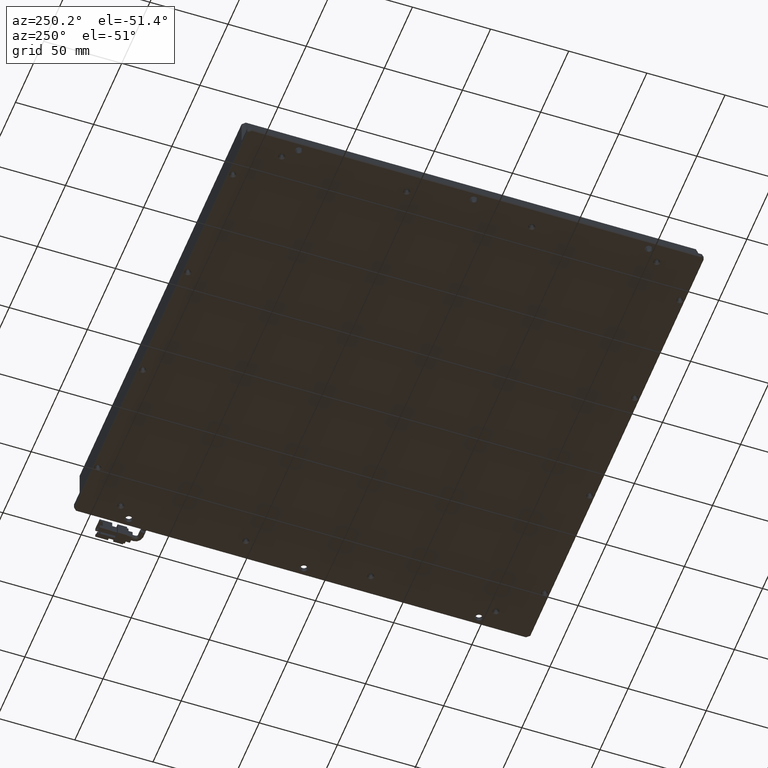
[diagram: clean part render]
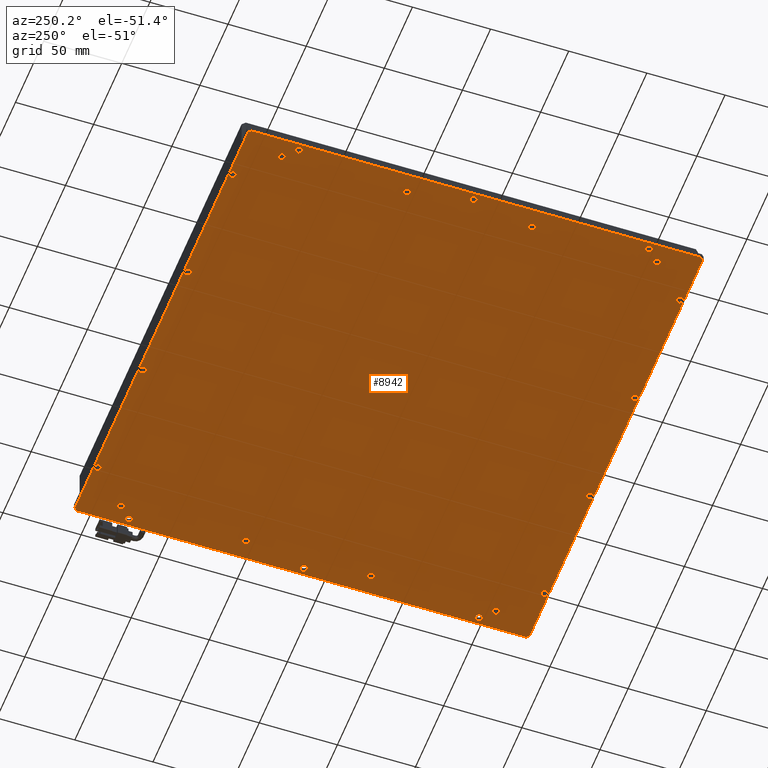
[diagram: same view with one face highlighted and labeled with its STEP entity id]
A machine part, auxiliary view. The second image highlights one B-rep face of the part: STEP entity #8942.
In plain terms, the highlighted planar face has unit normal (0, 0, -1).
Its self-contained STEP definition (entity closure, byte-faithful):
#92 = CARTESIAN_POINT ( 'NONE',  ( 175.9193228736580700, 53.26980456922658600, -10.00000000000637900 ) ) ;
#152 = DIRECTION ( 'NONE',  ( -0.0000000000000000000, -0.0000000000000000000, 1.000000000000000000 ) ) ;
#187 = CIRCLE ( 'NONE', #7081, 2.249999999999974200 ) ;
#237 = DIRECTION ( 'NONE',  ( -1.000000000000000000, 0.0000000000000000000, 0.0000000000000000000 ) ) ;
#323 = CARTESIAN_POINT ( 'NONE',  ( -115.8306771263419100, 13.26980456922663400, -10.00000000002819400 ) ) ;
#325 = DIRECTION ( 'NONE',  ( -1.000000000000000000, 0.0000000000000000000, -0.0000000000000000000 ) ) ;
#411 = FACE_BOUND ( 'NONE', #17421, .T. ) ;
#450 = AXIS2_PLACEMENT_3D ( 'NONE', #23255, #16265, #8909 ) ;
#518 = AXIS2_PLACEMENT_3D ( 'NONE', #3213, #10387, #23298 ) ;
#539 = ORIENTED_EDGE ( 'NONE', *, *, #12701, .T. ) ;
#540 = VERTEX_POINT ( 'NONE', #6546 ) ;
#587 = CARTESIAN_POINT ( 'NONE',  ( -115.8306771263419100, 125.2698045692265900, -10.00000000002819400 ) ) ;
#616 = EDGE_CURVE ( 'NONE', #17649, #12353, #4560, .T. ) ;
#648 = ORIENTED_EDGE ( 'NONE', *, *, #17652, .F. ) ;
#662 = DIRECTION ( 'NONE',  ( -1.000000000000000000, 0.0000000000000000000, 0.0000000000000000000 ) ) ;
#670 = DIRECTION ( 'NONE',  ( 1.000000000000000000, 0.0000000000000000000, 0.0000000000000000000 ) ) ;
#677 = CIRCLE ( 'NONE', #2273, 2.249999999999974200 ) ;
#779 = EDGE_LOOP ( 'NONE', ( #15564, #10422 ) ) ;
#781 = VERTEX_POINT ( 'NONE', #821 ) ;
#821 = CARTESIAN_POINT ( 'NONE',  ( -84.88067712638391500, 156.2698045692266400, -10.00000000002819400 ) ) ;
#877 = AXIS2_PLACEMENT_3D ( 'NONE', #3053, #8214, #4871 ) ;
#888 = EDGE_CURVE ( 'NONE', #23918, #4594, #16999, .T. ) ;
#949 = DIRECTION ( 'NONE',  ( -1.000000000000000000, 0.0000000000000000000, 0.0000000000000000000 ) ) ;
#956 = CIRCLE ( 'NONE', #2089, 2.199999999902502200 ) ;
#998 = DIRECTION ( 'NONE',  ( -0.0000000000000000000, -0.0000000000000000000, 1.000000000000000000 ) ) ;
#1011 = CARTESIAN_POINT ( 'NONE',  ( -112.2806771263244500, 133.2698045692266100, -10.00000000008503800 ) ) ;
#1038 = EDGE_LOOP ( 'NONE', ( #648, #22763, #3623, #20508, #16617, #23545, #8580, #10185 ) ) ;
#1136 = EDGE_CURVE ( 'NONE', #9655, #20993, #11478, .T. ) ;
#1254 = VERTEX_POINT ( 'NONE', #18297 ) ;
#1259 = DIRECTION ( 'NONE',  ( 1.000000000000000000, 0.0000000000000000000, 0.0000000000000000000 ) ) ;
#1316 = CARTESIAN_POINT ( 'NONE',  ( 175.9193228736580700, -26.73019543077340300, -10.00000000000637900 ) ) ;
#1357 = DIRECTION ( 'NONE',  ( -0.0000000000000000000, -0.0000000000000000000, 1.000000000000000000 ) ) ;
#1374 = AXIS2_PLACEMENT_3D ( 'NONE', #13327, #152, #2250 ) ;
#1587 = EDGE_CURVE ( 'NONE', #4174, #3041, #6492, .T. ) ;
#1660 = ORIENTED_EDGE ( 'NONE', *, *, #17012, .T. ) ;
#1670 = DIRECTION ( 'NONE',  ( -0.0000000000000000000, -0.0000000000000000000, 1.000000000000000000 ) ) ;
#1673 = DIRECTION ( 'NONE',  ( -1.000000000000000000, 0.0000000000000000000, 0.0000000000000000000 ) ) ;
#1689 = AXIS2_PLACEMENT_3D ( 'NONE', #13476, #4085, #4006 ) ;
#1691 = CARTESIAN_POINT ( 'NONE',  ( 175.9193228736580700, -106.7301954307733900, -10.00000000000637900 ) ) ;
#1735 = CARTESIAN_POINT ( 'NONE',  ( 188.4193228736581000, 157.0626977880402800, -10.00000000002820000 ) ) ;
#1754 = EDGE_CURVE ( 'NONE', #540, #12982, #3296, .T. ) ;
#1930 = DIRECTION ( 'NONE',  ( -1.000000000000000000, 0.0000000000000000000, 0.0000000000000000000 ) ) ;
#1967 = CARTESIAN_POINT ( 'NONE',  ( -112.2806771263244500, -26.73019543077340300, -10.00000000008503800 ) ) ;
#2053 = EDGE_CURVE ( 'NONE', #19864, #13130, #3570, .T. ) ;
#2062 = EDGE_CURVE ( 'NONE', #3555, #11064, #10200, .T. ) ;
#2072 = ORIENTED_EDGE ( 'NONE', *, *, #7774, .T. ) ;
#2082 = CARTESIAN_POINT ( 'NONE',  ( -120.3306771263419000, 13.26980456922663400, -10.00000000002819400 ) ) ;
#2089 = AXIS2_PLACEMENT_3D ( 'NONE', #6738, #4938, #8681 ) ;
#2108 = AXIS2_PLACEMENT_3D ( 'NONE', #1691, #12762, #20178 ) ;
#2133 = FACE_BOUND ( 'NONE', #7761, .T. ) ;
#2151 = EDGE_LOOP ( 'NONE', ( #2072, #19288 ) ) ;
#2190 = VERTEX_POINT ( 'NONE', #3263 ) ;
#2240 = EDGE_LOOP ( 'NONE', ( #19746, #2811 ) ) ;
#2250 = DIRECTION ( 'NONE',  ( -1.000000000000000000, 0.0000000000000000000, 0.0000000000000000000 ) ) ;
#2273 = AXIS2_PLACEMENT_3D ( 'NONE', #21030, #10032, #11774 ) ;
#2418 = CARTESIAN_POINT ( 'NONE',  ( 72.91932287365810300, 156.2698045692266400, -10.00000000005456300 ) ) ;
#2612 = EDGE_CURVE ( 'NONE', #12008, #2729, #9862, .T. ) ;
#2680 = EDGE_CURVE ( 'NONE', #19670, #2190, #16228, .T. ) ;
#2697 = FACE_BOUND ( 'NONE', #12087, .T. ) ;
#2729 = VERTEX_POINT ( 'NONE', #19055 ) ;
#2761 = CARTESIAN_POINT ( 'NONE',  ( 178.1193228735605800, 53.26980456922658600, -10.00000000000637900 ) ) ;
#2774 = EDGE_LOOP ( 'NONE', ( #13380, #4283 ) ) ;
#2782 = DIRECTION ( 'NONE',  ( -1.000000000000000000, 0.0000000000000000000, 0.0000000000000000000 ) ) ;
#2811 = ORIENTED_EDGE ( 'NONE', *, *, #10357, .T. ) ;
#2836 = DIRECTION ( 'NONE',  ( 1.000000000000000000, 0.0000000000000000000, 0.0000000000000000000 ) ) ;
#2949 = CARTESIAN_POINT ( 'NONE',  ( 152.9193228736580500, 156.2698045692266400, -10.00000000003868500 ) ) ;
#2950 = AXIS2_PLACEMENT_3D ( 'NONE', #19813, #12493, #21439 ) ;
#2989 = DIRECTION ( 'NONE',  ( -0.0000000000000000000, -0.0000000000000000000, 1.000000000000000000 ) ) ;
#3005 = AXIS2_PLACEMENT_3D ( 'NONE', #13757, #6395, #8488 ) ;
#3006 = DIRECTION ( 'NONE',  ( -1.000000000000000000, 0.0000000000000000000, 0.0000000000000000000 ) ) ;
#3009 = CARTESIAN_POINT ( 'NONE',  ( -9.280677126315806500, -129.7301954307733600, -9.999999999971350900 ) ) ;
#3041 = VERTEX_POINT ( 'NONE', #18002 ) ;
#3053 = CARTESIAN_POINT ( 'NONE',  ( 183.9193228736580700, 13.26980456922655100, -10.00000000002819400 ) ) ;
#3065 = ORIENTED_EDGE ( 'NONE', *, *, #2053, .T. ) ;
#3213 = CARTESIAN_POINT ( 'NONE',  ( 183.9193228736580700, 125.2698045692265400, -10.00000000002819400 ) ) ;
#3263 = CARTESIAN_POINT ( 'NONE',  ( -120.3306771263419000, -98.73019543077346300, -10.00000000002819400 ) ) ;
#3265 = FACE_BOUND ( 'NONE', #18158, .T. ) ;
#3296 = CIRCLE ( 'NONE', #18673, 2.199999999982535500 ) ;
#3322 = AXIS2_PLACEMENT_3D ( 'NONE', #23217, #2989, #21542 ) ;
#3333 = CARTESIAN_POINT ( 'NONE',  ( 188.4193228736581300, 157.0626977880401100, -10.00000000002823700 ) ) ;
#3362 = DIRECTION ( 'NONE',  ( 1.000000000000000000, 0.0000000000000000000, 0.0000000000000000000 ) ) ;
#3538 = VERTEX_POINT ( 'NONE', #11591 ) ;
#3555 = VERTEX_POINT ( 'NONE', #20842 ) ;
#3557 = DIRECTION ( 'NONE',  ( -1.000000000000000000, 0.0000000000000000000, 0.0000000000000000000 ) ) ;
#3570 = CIRCLE ( 'NONE', #9519, 2.199999999959345600 ) ;
#3623 = ORIENTED_EDGE ( 'NONE', *, *, #19399, .T. ) ;
#3633 = DIRECTION ( 'NONE',  ( -1.000000000000000000, 0.0000000000000000000, 0.0000000000000000000 ) ) ;
#3638 = ORIENTED_EDGE ( 'NONE', *, *, #10972, .T. ) ;
#3757 = CARTESIAN_POINT ( 'NONE',  ( -87.08067712634191100, 156.2698045692266400, -10.00000000002819400 ) ) ;
#3779 = CARTESIAN_POINT ( 'NONE',  ( 186.7122160924718100, 158.7698045692266400, -10.00000000002818900 ) ) ;
#3786 = DIRECTION ( 'NONE',  ( -1.000000000000000000, 0.0000000000000000000, 0.0000000000000000000 ) ) ;
#3837 = AXIS2_PLACEMENT_3D ( 'NONE', #15107, #6115, #670 ) ;
#3887 = CARTESIAN_POINT ( 'NONE',  ( -4.880677126368027500, -129.7301954307733600, -9.999999999971350900 ) ) ;
#3983 = EDGE_CURVE ( 'NONE', #1254, #22780, #10309, .T. ) ;
#4001 = DIRECTION ( 'NONE',  ( -0.0000000000000000000, -0.0000000000000000000, 1.000000000000000000 ) ) ;
#4006 = DIRECTION ( 'NONE',  ( -1.000000000000000000, 0.0000000000000000000, 0.0000000000000000000 ) ) ;
#4063 = CIRCLE ( 'NONE', #9638, 2.199999999957985800 ) ;
#4075 = AXIS2_PLACEMENT_3D ( 'NONE', #12422, #1357, #1673 ) ;
#4085 = DIRECTION ( 'NONE',  ( -0.0000000000000000000, -0.0000000000000000000, 1.000000000000000000 ) ) ;
#4118 = EDGE_CURVE ( 'NONE', #14651, #4829, #11805, .T. ) ;
#4168 = DIRECTION ( 'NONE',  ( -1.000000000000000000, 0.0000000000000000000, 0.0000000000000000000 ) ) ;
#4174 = VERTEX_POINT ( 'NONE', #7707 ) ;
#4212 = ORIENTED_EDGE ( 'NONE', *, *, #16121, .T. ) ;
#4264 = VERTEX_POINT ( 'NONE', #16604 ) ;
#4283 = ORIENTED_EDGE ( 'NONE', *, *, #1754, .T. ) ;
#4387 = AXIS2_PLACEMENT_3D ( 'NONE', #5021, #18006, #19837 ) ;
#4428 = CARTESIAN_POINT ( 'NONE',  ( 152.9193228736580500, 156.2698045692266400, -10.00000000003868500 ) ) ;
#4440 = DIRECTION ( 'NONE',  ( 0.0000000000000000000, 1.000000000000000000, 0.0000000000000000000 ) ) ;
#4463 = DIRECTION ( 'NONE',  ( -0.0000000000000000000, -0.0000000000000000000, 1.000000000000000000 ) ) ;
#4480 = CARTESIAN_POINT ( 'NONE',  ( -110.0806771263419100, -26.73019543077340300, -10.00000000008503800 ) ) ;
#4560 = CIRCLE ( 'NONE', #22505, 2.199999999902502200 ) ;
#4594 = VERTEX_POINT ( 'NONE', #3009 ) ;
#4664 = FACE_BOUND ( 'NONE', #6750, .T. ) ;
#4740 = DIRECTION ( 'NONE',  ( -0.0000000000000000000, -0.0000000000000000000, 1.000000000000000000 ) ) ;
#4762 = CARTESIAN_POINT ( 'NONE',  ( 175.9193228736580700, -26.73019543077340300, -10.00000000000637900 ) ) ;
#4818 = AXIS2_PLACEMENT_3D ( 'NONE', #9565, #4001, #18798 ) ;
#4829 = VERTEX_POINT ( 'NONE', #20174 ) ;
#4850 = ORIENTED_EDGE ( 'NONE', *, *, #19972, .T. ) ;
#4871 = DIRECTION ( 'NONE',  ( 1.000000000000000000, 0.0000000000000000000, 0.0000000000000000000 ) ) ;
#4918 = CARTESIAN_POINT ( 'NONE',  ( 183.9193228736580700, -98.73019543077344900, -10.00000000002819400 ) ) ;
#4938 = DIRECTION ( 'NONE',  ( -0.0000000000000000000, -0.0000000000000000000, 1.000000000000000000 ) ) ;
#5021 = CARTESIAN_POINT ( 'NONE',  ( -123.0806771263419100, 159.2698045692266400, -10.00000000002819400 ) ) ;
#5085 = CARTESIAN_POINT ( 'NONE',  ( -110.0806771263419100, -26.73019543077340300, -10.00000000008503800 ) ) ;
#5170 = EDGE_CURVE ( 'NONE', #21019, #9984, #956, .T. ) ;
#5257 = CIRCLE ( 'NONE', #23558, 2.200000000016189000 ) ;
#5258 = FACE_BOUND ( 'NONE', #22750, .T. ) ;
#5271 = EDGE_CURVE ( 'NONE', #6400, #13321, #10439, .T. ) ;
#5334 = LINE ( 'NONE', #6951, #16065 ) ;
#5346 = CARTESIAN_POINT ( 'NONE',  ( 152.9193228736580500, -129.7301954307733600, -10.00000000003868500 ) ) ;
#5361 = VECTOR ( 'NONE', #11199, 1000.000000000000000 ) ;
#5415 = EDGE_CURVE ( 'NONE', #13321, #6400, #6661, .T. ) ;
#5566 = CIRCLE ( 'NONE', #14068, 2.249999999999974200 ) ;
#5658 = EDGE_CURVE ( 'NONE', #20896, #10905, #677, .T. ) ;
#5695 = ORIENTED_EDGE ( 'NONE', *, *, #7265, .T. ) ;
#5762 = CIRCLE ( 'NONE', #3005, 2.199999999973889500 ) ;
#5787 = CIRCLE ( 'NONE', #12129, 2.199999999957985800 ) ;
#5804 = ORIENTED_EDGE ( 'NONE', *, *, #616, .T. ) ;
#5889 = ORIENTED_EDGE ( 'NONE', *, *, #3983, .T. ) ;
#5925 = AXIS2_PLACEMENT_3D ( 'NONE', #9602, #22432, #11417 ) ;
#5930 = CARTESIAN_POINT ( 'NONE',  ( -123.0806771263419100, 158.7698045692266400, -10.00000000002819400 ) ) ;
#5996 = ORIENTED_EDGE ( 'NONE', *, *, #15347, .T. ) ;
#6007 = CIRCLE ( 'NONE', #15870, 2.199999999973889500 ) ;
#6028 = EDGE_LOOP ( 'NONE', ( #22400, #9446 ) ) ;
#6110 = DIRECTION ( 'NONE',  ( -0.0000000000000000000, -0.0000000000000000000, 1.000000000000000000 ) ) ;
#6115 = DIRECTION ( 'NONE',  ( -0.0000000000000000000, -0.0000000000000000000, 1.000000000000000000 ) ) ;
#6168 = EDGE_CURVE ( 'NONE', #11722, #14380, #14191, .T. ) ;
#6315 = DIRECTION ( 'NONE',  ( -0.0000000000000000000, -0.0000000000000000000, 1.000000000000000000 ) ) ;
#6395 = DIRECTION ( 'NONE',  ( -0.0000000000000000000, -0.0000000000000000000, 1.000000000000000000 ) ) ;
#6400 = VERTEX_POINT ( 'NONE', #16340 ) ;
#6405 = ORIENTED_EDGE ( 'NONE', *, *, #12730, .T. ) ;
#6470 = EDGE_CURVE ( 'NONE', #11890, #18915, #5334, .T. ) ;
#6492 = CIRCLE ( 'NONE', #9210, 2.199999999902502200 ) ;
#6542 = VERTEX_POINT ( 'NONE', #20374 ) ;
#6546 = CARTESIAN_POINT ( 'NONE',  ( -107.8806771263593700, 53.26980456922658600, -10.00000000008503800 ) ) ;
#6634 = CIRCLE ( 'NONE', #518, 2.249999999999974200 ) ;
#6661 = CIRCLE ( 'NONE', #4075, 2.199999999957985800 ) ;
#6674 = DIRECTION ( 'NONE',  ( -0.0000000000000000000, -0.0000000000000000000, 1.000000000000000000 ) ) ;
#6738 = CARTESIAN_POINT ( 'NONE',  ( 175.9193228736580700, 133.2698045692266100, -10.00000000000637900 ) ) ;
#6750 = EDGE_LOOP ( 'NONE', ( #13062, #5889 ) ) ;
#6779 = EDGE_LOOP ( 'NONE', ( #23517, #5695 ) ) ;
#6832 = CARTESIAN_POINT ( 'NONE',  ( 75.11932287367429200, 156.2698045692266400, -10.00000000005456300 ) ) ;
#6877 = VERTEX_POINT ( 'NONE', #6832 ) ;
#6950 = CARTESIAN_POINT ( 'NONE',  ( 175.9193228736580700, -106.7301954307733900, -10.00000000000637900 ) ) ;
#6951 = CARTESIAN_POINT ( 'NONE',  ( -123.0806771263419100, -132.2301954307733600, -10.00000000002819400 ) ) ;
#6981 = EDGE_CURVE ( 'NONE', #19460, #22696, #9635, .T. ) ;
#7005 = ORIENTED_EDGE ( 'NONE', *, *, #18929, .T. ) ;
#7081 = AXIS2_PLACEMENT_3D ( 'NONE', #11311, #18581, #7502 ) ;
#7138 = AXIS2_PLACEMENT_3D ( 'NONE', #8342, #21258, #15860 ) ;
#7148 = EDGE_LOOP ( 'NONE', ( #23844, #15415 ) ) ;
#7194 = DIRECTION ( 'NONE',  ( -0.7071067811865360300, 0.7071067811865589000, 1.724510377719932900E-014 ) ) ;
#7215 = ORIENTED_EDGE ( 'NONE', *, *, #7979, .T. ) ;
#7265 = EDGE_CURVE ( 'NONE', #4829, #14651, #8163, .T. ) ;
#7417 = DIRECTION ( 'NONE',  ( -0.0000000000000000000, -0.0000000000000000000, 1.000000000000000000 ) ) ;
#7502 = DIRECTION ( 'NONE',  ( 1.000000000000000000, 0.0000000000000000000, 0.0000000000000000000 ) ) ;
#7550 = DIRECTION ( 'NONE',  ( -0.0000000000000000000, -0.0000000000000000000, 1.000000000000000000 ) ) ;
#7566 = CIRCLE ( 'NONE', #10504, 2.199999999959345600 ) ;
#7584 = DIRECTION ( 'NONE',  ( -0.0000000000000000000, -0.0000000000000000000, 1.000000000000000000 ) ) ;
#7631 = EDGE_CURVE ( 'NONE', #19929, #9885, #16225, .T. ) ;
#7654 = CIRCLE ( 'NONE', #17416, 2.249999999999988000 ) ;
#7663 = VERTEX_POINT ( 'NONE', #1735 ) ;
#7688 = ORIENTED_EDGE ( 'NONE', *, *, #12640, .T. ) ;
#7707 = CARTESIAN_POINT ( 'NONE',  ( 173.7193228737555700, -26.73019543077340300, -10.00000000000637900 ) ) ;
#7716 = DIRECTION ( 'NONE',  ( -0.0000000000000000000, -0.0000000000000000000, 1.000000000000000000 ) ) ;
#7761 = EDGE_LOOP ( 'NONE', ( #12371, #15483 ) ) ;
#7774 = EDGE_CURVE ( 'NONE', #10335, #781, #5787, .T. ) ;
#7810 = EDGE_CURVE ( 'NONE', #781, #10335, #4063, .T. ) ;
#7874 = AXIS2_PLACEMENT_3D ( 'NONE', #21760, #1670, #3362 ) ;
#7899 = AXIS2_PLACEMENT_3D ( 'NONE', #5346, #16193, #14601 ) ;
#7979 = EDGE_CURVE ( 'NONE', #4594, #23918, #5762, .T. ) ;
#8030 = EDGE_LOOP ( 'NONE', ( #4212, #3065 ) ) ;
#8035 = LINE ( 'NONE', #5930, #17880 ) ;
#8071 = ORIENTED_EDGE ( 'NONE', *, *, #8675, .T. ) ;
#8145 = EDGE_LOOP ( 'NONE', ( #539, #22048 ) ) ;
#8163 = CIRCLE ( 'NONE', #20255, 2.199999999959345600 ) ;
#8168 = CARTESIAN_POINT ( 'NONE',  ( 186.1693228736580700, 13.26980456922655100, -10.00000000002819400 ) ) ;
#8172 = CARTESIAN_POINT ( 'NONE',  ( -118.0806771263419100, -98.73019543077346300, -10.00000000002819400 ) ) ;
#8214 = DIRECTION ( 'NONE',  ( -0.0000000000000000000, -0.0000000000000000000, 1.000000000000000000 ) ) ;
#8237 = CIRCLE ( 'NONE', #10782, 2.199999999902502200 ) ;
#8342 = CARTESIAN_POINT ( 'NONE',  ( -118.0806771263419100, 13.26980456922663400, -10.00000000002819400 ) ) ;
#8417 = LINE ( 'NONE', #10863, #18270 ) ;
#8488 = DIRECTION ( 'NONE',  ( -1.000000000000000000, 0.0000000000000000000, 0.0000000000000000000 ) ) ;
#8549 = CARTESIAN_POINT ( 'NONE',  ( 150.7193228736987000, -129.7301954307733600, -10.00000000003868500 ) ) ;
#8576 = CARTESIAN_POINT ( 'NONE',  ( 181.6693228736581000, 125.2698045692265400, -10.00000000002819400 ) ) ;
#8580 = ORIENTED_EDGE ( 'NONE', *, *, #11894, .T. ) ;
#8675 = EDGE_CURVE ( 'NONE', #22696, #19460, #6007, .T. ) ;
#8681 = DIRECTION ( 'NONE',  ( -1.000000000000000000, 0.0000000000000000000, 0.0000000000000000000 ) ) ;
#8690 = PLANE ( 'NONE',  #4387 ) ;
#8747 = FACE_BOUND ( 'NONE', #22723, .T. ) ;
#8797 = CIRCLE ( 'NONE', #9604, 2.199999999902502200 ) ;
#8827 = DIRECTION ( 'NONE',  ( -0.0000000000000000000, -0.0000000000000000000, 1.000000000000000000 ) ) ;
#8898 = DIRECTION ( 'NONE',  ( -1.000000000000000000, 0.0000000000000000000, 0.0000000000000000000 ) ) ;
#8909 = DIRECTION ( 'NONE',  ( -1.000000000000000000, 0.0000000000000000000, 0.0000000000000000000 ) ) ;
#8920 = DIRECTION ( 'NONE',  ( -0.0000000000000000000, -1.000000000000000000, -0.0000000000000000000 ) ) ;
#8942 = ADVANCED_FACE ( 'NONE', ( #20603, #14552, #23166, #15685, #21750, #12533, #2133, #11948, #19435, #4664, #15988, #411, #18024, #5258, #3265, #2697, #14850, #16860, #10757, #11381, #8747, #11070, #21172 ), #8690, .T. ) ;
#8950 = DIRECTION ( 'NONE',  ( -1.000000000000000000, 0.0000000000000000000, 0.0000000000000000000 ) ) ;
#8955 = AXIS2_PLACEMENT_3D ( 'NONE', #21253, #6315, #13763 ) ;
#9059 = CARTESIAN_POINT ( 'NONE',  ( -107.8806771263593700, -26.73019543077340300, -10.00000000008503800 ) ) ;
#9112 = VERTEX_POINT ( 'NONE', #323 ) ;
#9115 = CARTESIAN_POINT ( 'NONE',  ( -7.080677126341916100, 156.2698045692266400, -9.999999999971350900 ) ) ;
#9118 = LINE ( 'NONE', #3333, #16059 ) ;
#9136 = EDGE_LOOP ( 'NONE', ( #3638, #17886 ) ) ;
#9210 = AXIS2_PLACEMENT_3D ( 'NONE', #1316, #4740, #3006 ) ;
#9280 = AXIS2_PLACEMENT_3D ( 'NONE', #8172, #10003, #2836 ) ;
#9283 = CARTESIAN_POINT ( 'NONE',  ( 188.4193228736581000, -130.5230886495869000, -10.00000000002819600 ) ) ;
#9369 = CARTESIAN_POINT ( 'NONE',  ( 173.7193228737555700, 133.2698045692266100, -10.00000000000637900 ) ) ;
#9446 = ORIENTED_EDGE ( 'NONE', *, *, #10916, .T. ) ;
#9519 = AXIS2_PLACEMENT_3D ( 'NONE', #2949, #19565, #949 ) ;
#9565 = CARTESIAN_POINT ( 'NONE',  ( -7.080677126341916100, -129.7301954307733600, -9.999999999971350900 ) ) ;
#9602 = CARTESIAN_POINT ( 'NONE',  ( -110.0806771263419100, 53.26980456922658600, -10.00000000008503800 ) ) ;
#9604 = AXIS2_PLACEMENT_3D ( 'NONE', #4762, #17499, #2782 ) ;
#9635 = CIRCLE ( 'NONE', #10004, 2.199999999973889500 ) ;
#9638 = AXIS2_PLACEMENT_3D ( 'NONE', #3757, #7550, #16689 ) ;
#9655 = VERTEX_POINT ( 'NONE', #1967 ) ;
#9686 = CARTESIAN_POINT ( 'NONE',  ( -4.880677126368027500, 156.2698045692266400, -9.999999999971350900 ) ) ;
#9778 = DIRECTION ( 'NONE',  ( 0.7071067811865461300, -0.7071067811865489100, 5.748367925732748000E-015 ) ) ;
#9862 = CIRCLE ( 'NONE', #1374, 2.199999999982535500 ) ;
#9885 = VERTEX_POINT ( 'NONE', #8168 ) ;
#9984 = VERTEX_POINT ( 'NONE', #10480 ) ;
#10003 = DIRECTION ( 'NONE',  ( -0.0000000000000000000, -0.0000000000000000000, 1.000000000000000000 ) ) ;
#10004 = AXIS2_PLACEMENT_3D ( 'NONE', #23542, #23626, #8950 ) ;
#10032 = DIRECTION ( 'NONE',  ( -0.0000000000000000000, -0.0000000000000000000, 1.000000000000000000 ) ) ;
#10055 = CARTESIAN_POINT ( 'NONE',  ( -122.5806771263419300, -130.5230886495868400, -10.00000000002819400 ) ) ;
#10075 = EDGE_CURVE ( 'NONE', #2729, #12008, #19597, .T. ) ;
#10110 = EDGE_CURVE ( 'NONE', #16958, #20120, #13845, .T. ) ;
#10185 = ORIENTED_EDGE ( 'NONE', *, *, #10687, .F. ) ;
#10200 = CIRCLE ( 'NONE', #450, 2.200000000016189000 ) ;
#10263 = LINE ( 'NONE', #22239, #5361 ) ;
#10309 = CIRCLE ( 'NONE', #2950, 2.199999999982535500 ) ;
#10335 = VERTEX_POINT ( 'NONE', #21301 ) ;
#10357 = EDGE_CURVE ( 'NONE', #20993, #9655, #20744, .T. ) ;
#10387 = DIRECTION ( 'NONE',  ( -0.0000000000000000000, -0.0000000000000000000, 1.000000000000000000 ) ) ;
#10422 = ORIENTED_EDGE ( 'NONE', *, *, #16119, .T. ) ;
#10439 = CIRCLE ( 'NONE', #15680, 2.199999999957985800 ) ;
#10453 = CARTESIAN_POINT ( 'NONE',  ( -87.08067712634191100, -129.7301954307733600, -10.00000000002819400 ) ) ;
#10480 = CARTESIAN_POINT ( 'NONE',  ( 178.1193228735605800, 133.2698045692266100, -10.00000000000637900 ) ) ;
#10504 = AXIS2_PLACEMENT_3D ( 'NONE', #4428, #998, #17627 ) ;
#10664 = ORIENTED_EDGE ( 'NONE', *, *, #6981, .T. ) ;
#10687 = EDGE_CURVE ( 'NONE', #6542, #22182, #10263, .T. ) ;
#10757 = FACE_BOUND ( 'NONE', #2151, .T. ) ;
#10782 = AXIS2_PLACEMENT_3D ( 'NONE', #20737, #7584, #3786 ) ;
#10863 = CARTESIAN_POINT ( 'NONE',  ( 186.7122160924716900, -132.2301954307733400, -10.00000000002817100 ) ) ;
#10905 = VERTEX_POINT ( 'NONE', #8576 ) ;
#10916 = EDGE_CURVE ( 'NONE', #3041, #4174, #8797, .T. ) ;
#10972 = EDGE_CURVE ( 'NONE', #9112, #13541, #22087, .T. ) ;
#11048 = CIRCLE ( 'NONE', #8955, 2.199999999982535500 ) ;
#11064 = VERTEX_POINT ( 'NONE', #17982 ) ;
#11070 = FACE_BOUND ( 'NONE', #8030, .T. ) ;
#11113 = CIRCLE ( 'NONE', #5925, 2.199999999982535500 ) ;
#11199 = DIRECTION ( 'NONE',  ( -0.7071067811865439100, -0.7071067811865512400, -4.625639815238161800E-015 ) ) ;
#11223 = DIRECTION ( 'NONE',  ( -0.0000000000000000000, -0.0000000000000000000, 1.000000000000000000 ) ) ;
#11311 = CARTESIAN_POINT ( 'NONE',  ( 183.9193228736580700, -98.73019543077344900, -10.00000000002819400 ) ) ;
#11381 = FACE_BOUND ( 'NONE', #16105, .T. ) ;
#11417 = DIRECTION ( 'NONE',  ( -1.000000000000000000, 0.0000000000000000000, 0.0000000000000000000 ) ) ;
#11478 = CIRCLE ( 'NONE', #18955, 2.199999999982535500 ) ;
#11591 = CARTESIAN_POINT ( 'NONE',  ( 186.1693228736580700, -98.73019543077344900, -10.00000000002819400 ) ) ;
#11722 = VERTEX_POINT ( 'NONE', #16272 ) ;
#11730 = ORIENTED_EDGE ( 'NONE', *, *, #5271, .T. ) ;
#11774 = DIRECTION ( 'NONE',  ( 1.000000000000000000, 0.0000000000000000000, 0.0000000000000000000 ) ) ;
#11805 = CIRCLE ( 'NONE', #7899, 2.199999999959345600 ) ;
#11890 = VERTEX_POINT ( 'NONE', #23015 ) ;
#11894 = EDGE_CURVE ( 'NONE', #18914, #22182, #17245, .T. ) ;
#11948 = FACE_BOUND ( 'NONE', #2774, .T. ) ;
#12008 = VERTEX_POINT ( 'NONE', #1011 ) ;
#12087 = EDGE_LOOP ( 'NONE', ( #7215, #20864 ) ) ;
#12104 = DIRECTION ( 'NONE',  ( -1.000000000000000000, 0.0000000000000000000, 0.0000000000000000000 ) ) ;
#12129 = AXIS2_PLACEMENT_3D ( 'NONE', #18472, #7716, #237 ) ;
#12198 = EDGE_CURVE ( 'NONE', #7663, #12926, #9118, .T. ) ;
#12322 = DIRECTION ( 'NONE',  ( -0.0000000000000000000, -0.0000000000000000000, 1.000000000000000000 ) ) ;
#12353 = VERTEX_POINT ( 'NONE', #20287 ) ;
#12371 = ORIENTED_EDGE ( 'NONE', *, *, #2612, .T. ) ;
#12418 = EDGE_CURVE ( 'NONE', #12982, #540, #11113, .T. ) ;
#12422 = CARTESIAN_POINT ( 'NONE',  ( -87.08067712634191100, -129.7301954307733600, -10.00000000002819400 ) ) ;
#12493 = DIRECTION ( 'NONE',  ( -0.0000000000000000000, -0.0000000000000000000, 1.000000000000000000 ) ) ;
#12524 = ORIENTED_EDGE ( 'NONE', *, *, #5658, .T. ) ;
#12533 = FACE_BOUND ( 'NONE', #19722, .T. ) ;
#12627 = DIRECTION ( 'NONE',  ( -0.0000000000000000000, -0.0000000000000000000, 1.000000000000000000 ) ) ;
#12640 = EDGE_CURVE ( 'NONE', #20120, #16958, #7654, .T. ) ;
#12670 = CARTESIAN_POINT ( 'NONE',  ( -89.28067712629989200, -129.7301954307733600, -10.00000000002819400 ) ) ;
#12693 = CARTESIAN_POINT ( 'NONE',  ( 155.1193228736173900, 156.2698045692266400, -10.00000000003868500 ) ) ;
#12701 = EDGE_CURVE ( 'NONE', #11064, #3555, #18316, .T. ) ;
#12730 = EDGE_CURVE ( 'NONE', #12353, #17649, #13421, .T. ) ;
#12762 = DIRECTION ( 'NONE',  ( -0.0000000000000000000, -0.0000000000000000000, 1.000000000000000000 ) ) ;
#12904 = CARTESIAN_POINT ( 'NONE',  ( 178.1193228735605800, -106.7301954307733900, -10.00000000000637900 ) ) ;
#12926 = VERTEX_POINT ( 'NONE', #3779 ) ;
#12941 = DIRECTION ( 'NONE',  ( -0.0000000000000000000, -0.0000000000000000000, 1.000000000000000000 ) ) ;
#12949 = CARTESIAN_POINT ( 'NONE',  ( -122.5806771263419400, 157.0626977880401100, -10.00000000002819800 ) ) ;
#12982 = VERTEX_POINT ( 'NONE', #15018 ) ;
#13054 = EDGE_CURVE ( 'NONE', #6877, #4264, #5257, .T. ) ;
#13062 = ORIENTED_EDGE ( 'NONE', *, *, #20747, .T. ) ;
#13130 = VERTEX_POINT ( 'NONE', #21042 ) ;
#13321 = VERTEX_POINT ( 'NONE', #12670 ) ;
#13327 = CARTESIAN_POINT ( 'NONE',  ( -110.0806771263419100, 133.2698045692266100, -10.00000000008503800 ) ) ;
#13380 = ORIENTED_EDGE ( 'NONE', *, *, #12418, .T. ) ;
#13421 = CIRCLE ( 'NONE', #2108, 2.199999999902502200 ) ;
#13476 = CARTESIAN_POINT ( 'NONE',  ( 175.9193228736580700, 53.26980456922658600, -10.00000000000637900 ) ) ;
#13541 = VERTEX_POINT ( 'NONE', #2082 ) ;
#13757 = CARTESIAN_POINT ( 'NONE',  ( -7.080677126341916100, -129.7301954307733600, -9.999999999971350900 ) ) ;
#13763 = DIRECTION ( 'NONE',  ( -1.000000000000000000, 0.0000000000000000000, 0.0000000000000000000 ) ) ;
#13786 = VECTOR ( 'NONE', #4440, 1000.000000000000000 ) ;
#13845 = CIRCLE ( 'NONE', #15015, 2.249999999999988000 ) ;
#14068 = AXIS2_PLACEMENT_3D ( 'NONE', #4918, #12322, #1259 ) ;
#14083 = AXIS2_PLACEMENT_3D ( 'NONE', #14727, #12941, #3633 ) ;
#14191 = CIRCLE ( 'NONE', #17438, 2.199999999902502200 ) ;
#14203 = VERTEX_POINT ( 'NONE', #22375 ) ;
#14206 = DIRECTION ( 'NONE',  ( -1.000000000000000000, 0.0000000000000000000, 0.0000000000000000000 ) ) ;
#14223 = VECTOR ( 'NONE', #8920, 1000.000000000000000 ) ;
#14229 = CARTESIAN_POINT ( 'NONE',  ( -118.0806771263419100, 125.2698045692265900, -10.00000000002819400 ) ) ;
#14359 = DIRECTION ( 'NONE',  ( -1.000000000000000000, 0.0000000000000000000, 0.0000000000000000000 ) ) ;
#14380 = VERTEX_POINT ( 'NONE', #2761 ) ;
#14390 = CARTESIAN_POINT ( 'NONE',  ( -9.280677126315806500, 156.2698045692266400, -9.999999999971350900 ) ) ;
#14417 = AXIS2_PLACEMENT_3D ( 'NONE', #4480, #23137, #12104 ) ;
#14485 = DIRECTION ( 'NONE',  ( -1.000000000000000000, 0.0000000000000000000, 0.0000000000000000000 ) ) ;
#14552 = FACE_BOUND ( 'NONE', #19857, .T. ) ;
#14601 = DIRECTION ( 'NONE',  ( -1.000000000000000000, 0.0000000000000000000, 0.0000000000000000000 ) ) ;
#14635 = ORIENTED_EDGE ( 'NONE', *, *, #13054, .T. ) ;
#14651 = VERTEX_POINT ( 'NONE', #8549 ) ;
#14706 = VERTEX_POINT ( 'NONE', #9283 ) ;
#14727 = CARTESIAN_POINT ( 'NONE',  ( -110.0806771263419100, 133.2698045692266100, -10.00000000008503800 ) ) ;
#14774 = CARTESIAN_POINT ( 'NONE',  ( -118.0806771263419100, 13.26980456922663400, -10.00000000002819400 ) ) ;
#14850 = FACE_BOUND ( 'NONE', #8145, .T. ) ;
#14867 = DIRECTION ( 'NONE',  ( -1.000000000000000000, 0.0000000000000000000, 0.0000000000000000000 ) ) ;
#15015 = AXIS2_PLACEMENT_3D ( 'NONE', #15038, #16575, #16896 ) ;
#15018 = CARTESIAN_POINT ( 'NONE',  ( -112.2806771263244500, 53.26980456922658600, -10.00000000008503800 ) ) ;
#15024 = CARTESIAN_POINT ( 'NONE',  ( 181.6693228736581000, 13.26980456922655100, -10.00000000002819400 ) ) ;
#15038 = CARTESIAN_POINT ( 'NONE',  ( -118.0806771263419100, 125.2698045692265900, -10.00000000002819400 ) ) ;
#15079 = LINE ( 'NONE', #18777, #14223 ) ;
#15107 = CARTESIAN_POINT ( 'NONE',  ( -118.0806771263419100, -98.73019543077346300, -10.00000000002819400 ) ) ;
#15347 = EDGE_CURVE ( 'NONE', #14380, #11722, #23797, .T. ) ;
#15398 = CIRCLE ( 'NONE', #877, 2.249999999999974200 ) ;
#15409 = ORIENTED_EDGE ( 'NONE', *, *, #15622, .T. ) ;
#15415 = ORIENTED_EDGE ( 'NONE', *, *, #19965, .T. ) ;
#15483 = ORIENTED_EDGE ( 'NONE', *, *, #10075, .T. ) ;
#15517 = AXIS2_PLACEMENT_3D ( 'NONE', #14774, #20334, #18484 ) ;
#15564 = ORIENTED_EDGE ( 'NONE', *, *, #2680, .T. ) ;
#15622 = EDGE_CURVE ( 'NONE', #14203, #3538, #5566, .T. ) ;
#15666 = LINE ( 'NONE', #22612, #21729 ) ;
#15680 = AXIS2_PLACEMENT_3D ( 'NONE', #10453, #19668, #14206 ) ;
#15685 = FACE_BOUND ( 'NONE', #779, .T. ) ;
#15860 = DIRECTION ( 'NONE',  ( 1.000000000000000000, 0.0000000000000000000, 0.0000000000000000000 ) ) ;
#15870 = AXIS2_PLACEMENT_3D ( 'NONE', #9115, #7417, #1930 ) ;
#15981 = EDGE_CURVE ( 'NONE', #18914, #11890, #15666, .T. ) ;
#15988 = FACE_BOUND ( 'NONE', #7148, .T. ) ;
#16059 = VECTOR ( 'NONE', #7194, 1000.000000000000100 ) ;
#16065 = VECTOR ( 'NONE', #19888, 1000.000000000000000 ) ;
#16070 = CARTESIAN_POINT ( 'NONE',  ( -115.8306771263419100, -98.73019543077346300, -10.00000000002819400 ) ) ;
#16105 = EDGE_LOOP ( 'NONE', ( #8071, #10664 ) ) ;
#16119 = EDGE_CURVE ( 'NONE', #2190, #19670, #19695, .T. ) ;
#16121 = EDGE_CURVE ( 'NONE', #13130, #19864, #7566, .T. ) ;
#16193 = DIRECTION ( 'NONE',  ( -0.0000000000000000000, -0.0000000000000000000, 1.000000000000000000 ) ) ;
#16225 = CIRCLE ( 'NONE', #7874, 2.249999999999974200 ) ;
#16228 = CIRCLE ( 'NONE', #3837, 2.249999999999988000 ) ;
#16265 = DIRECTION ( 'NONE',  ( -0.0000000000000000000, -0.0000000000000000000, 1.000000000000000000 ) ) ;
#16272 = CARTESIAN_POINT ( 'NONE',  ( 173.7193228737555700, 53.26980456922658600, -10.00000000000637900 ) ) ;
#16340 = CARTESIAN_POINT ( 'NONE',  ( -84.88067712638391500, -129.7301954307733600, -10.00000000002819400 ) ) ;
#16573 = CARTESIAN_POINT ( 'NONE',  ( 72.91932287365810300, 156.2698045692266400, -10.00000000005456300 ) ) ;
#16575 = DIRECTION ( 'NONE',  ( -0.0000000000000000000, -0.0000000000000000000, 1.000000000000000000 ) ) ;
#16604 = CARTESIAN_POINT ( 'NONE',  ( 70.71932287364191400, 156.2698045692266400, -10.00000000005456300 ) ) ;
#16617 = ORIENTED_EDGE ( 'NONE', *, *, #6470, .F. ) ;
#16689 = DIRECTION ( 'NONE',  ( -1.000000000000000000, 0.0000000000000000000, 0.0000000000000000000 ) ) ;
#16694 = EDGE_CURVE ( 'NONE', #10905, #20896, #6634, .T. ) ;
#16860 = FACE_BOUND ( 'NONE', #6779, .T. ) ;
#16896 = DIRECTION ( 'NONE',  ( 1.000000000000000000, 0.0000000000000000000, 0.0000000000000000000 ) ) ;
#16958 = VERTEX_POINT ( 'NONE', #23879 ) ;
#16999 = CIRCLE ( 'NONE', #4818, 2.199999999973889500 ) ;
#17012 = EDGE_CURVE ( 'NONE', #4264, #6877, #18487, .T. ) ;
#17245 = LINE ( 'NONE', #22863, #13786 ) ;
#17415 = EDGE_LOOP ( 'NONE', ( #4850, #15409 ) ) ;
#17416 = AXIS2_PLACEMENT_3D ( 'NONE', #14229, #6674, #17772 ) ;
#17421 = EDGE_LOOP ( 'NONE', ( #19285, #5996 ) ) ;
#17438 = AXIS2_PLACEMENT_3D ( 'NONE', #92, #11223, #14867 ) ;
#17499 = DIRECTION ( 'NONE',  ( -0.0000000000000000000, -0.0000000000000000000, 1.000000000000000000 ) ) ;
#17582 = EDGE_CURVE ( 'NONE', #13541, #9112, #18479, .T. ) ;
#17627 = DIRECTION ( 'NONE',  ( -1.000000000000000000, 0.0000000000000000000, 0.0000000000000000000 ) ) ;
#17649 = VERTEX_POINT ( 'NONE', #12904 ) ;
#17652 = EDGE_CURVE ( 'NONE', #12926, #6542, #8035, .T. ) ;
#17772 = DIRECTION ( 'NONE',  ( 1.000000000000000000, 0.0000000000000000000, 0.0000000000000000000 ) ) ;
#17880 = VECTOR ( 'NONE', #325, 1000.000000000000000 ) ;
#17886 = ORIENTED_EDGE ( 'NONE', *, *, #17582, .T. ) ;
#17982 = CARTESIAN_POINT ( 'NONE',  ( 70.71932287364191400, -129.7301954307733600, -10.00000000005456300 ) ) ;
#18002 = CARTESIAN_POINT ( 'NONE',  ( 178.1193228735605800, -26.73019543077340300, -10.00000000000637900 ) ) ;
#18006 = DIRECTION ( 'NONE',  ( 0.0000000000000000000, 0.0000000000000000000, -1.000000000000000000 ) ) ;
#18024 = FACE_BOUND ( 'NONE', #6028, .T. ) ;
#18158 = EDGE_LOOP ( 'NONE', ( #23413, #11730 ) ) ;
#18270 = VECTOR ( 'NONE', #23773, 1000.000000000000000 ) ;
#18297 = CARTESIAN_POINT ( 'NONE',  ( -107.8806771263593700, -106.7301954307733900, -10.00000000008503800 ) ) ;
#18316 = CIRCLE ( 'NONE', #3322, 2.200000000016189000 ) ;
#18404 = CARTESIAN_POINT ( 'NONE',  ( -112.2806771263244500, -106.7301954307733900, -10.00000000008503800 ) ) ;
#18472 = CARTESIAN_POINT ( 'NONE',  ( -87.08067712634191100, 156.2698045692266400, -10.00000000002819400 ) ) ;
#18479 = CIRCLE ( 'NONE', #15517, 2.249999999999988000 ) ;
#18484 = DIRECTION ( 'NONE',  ( 1.000000000000000000, 0.0000000000000000000, 0.0000000000000000000 ) ) ;
#18487 = CIRCLE ( 'NONE', #19679, 2.200000000016189000 ) ;
#18581 = DIRECTION ( 'NONE',  ( -0.0000000000000000000, -0.0000000000000000000, 1.000000000000000000 ) ) ;
#18673 = AXIS2_PLACEMENT_3D ( 'NONE', #23638, #12627, #14485 ) ;
#18777 = CARTESIAN_POINT ( 'NONE',  ( 188.4193228736581000, 159.2698045692266400, -10.00000000002819400 ) ) ;
#18798 = DIRECTION ( 'NONE',  ( -1.000000000000000000, 0.0000000000000000000, 0.0000000000000000000 ) ) ;
#18914 = VERTEX_POINT ( 'NONE', #10055 ) ;
#18915 = VERTEX_POINT ( 'NONE', #22734 ) ;
#18929 = EDGE_CURVE ( 'NONE', #9885, #19929, #15398, .T. ) ;
#18955 = AXIS2_PLACEMENT_3D ( 'NONE', #5085, #8827, #14359 ) ;
#19055 = CARTESIAN_POINT ( 'NONE',  ( -107.8806771263593700, 133.2698045692266100, -10.00000000008503800 ) ) ;
#19176 = ORIENTED_EDGE ( 'NONE', *, *, #7631, .T. ) ;
#19224 = EDGE_CURVE ( 'NONE', #18915, #14706, #8417, .T. ) ;
#19285 = ORIENTED_EDGE ( 'NONE', *, *, #6168, .T. ) ;
#19288 = ORIENTED_EDGE ( 'NONE', *, *, #7810, .T. ) ;
#19399 = EDGE_CURVE ( 'NONE', #7663, #14706, #15079, .T. ) ;
#19435 = FACE_BOUND ( 'NONE', #2240, .T. ) ;
#19460 = VERTEX_POINT ( 'NONE', #9686 ) ;
#19565 = DIRECTION ( 'NONE',  ( -0.0000000000000000000, -0.0000000000000000000, 1.000000000000000000 ) ) ;
#19597 = CIRCLE ( 'NONE', #14083, 2.199999999982535500 ) ;
#19668 = DIRECTION ( 'NONE',  ( -0.0000000000000000000, -0.0000000000000000000, 1.000000000000000000 ) ) ;
#19670 = VERTEX_POINT ( 'NONE', #16070 ) ;
#19679 = AXIS2_PLACEMENT_3D ( 'NONE', #16573, #22267, #3557 ) ;
#19695 = CIRCLE ( 'NONE', #9280, 2.249999999999988000 ) ;
#19722 = EDGE_LOOP ( 'NONE', ( #7688, #22716 ) ) ;
#19746 = ORIENTED_EDGE ( 'NONE', *, *, #1136, .T. ) ;
#19813 = CARTESIAN_POINT ( 'NONE',  ( -110.0806771263419100, -106.7301954307733900, -10.00000000008503800 ) ) ;
#19837 = DIRECTION ( 'NONE',  ( -1.000000000000000000, 0.0000000000000000000, -0.0000000000000000000 ) ) ;
#19857 = EDGE_LOOP ( 'NONE', ( #7005, #19176 ) ) ;
#19864 = VERTEX_POINT ( 'NONE', #12693 ) ;
#19888 = DIRECTION ( 'NONE',  ( 1.000000000000000000, 0.0000000000000000000, 0.0000000000000000000 ) ) ;
#19929 = VERTEX_POINT ( 'NONE', #15024 ) ;
#19963 = ORIENTED_EDGE ( 'NONE', *, *, #16694, .T. ) ;
#19964 = DIRECTION ( 'NONE',  ( -0.0000000000000000000, -0.0000000000000000000, 1.000000000000000000 ) ) ;
#19965 = EDGE_CURVE ( 'NONE', #9984, #21019, #8237, .T. ) ;
#19972 = EDGE_CURVE ( 'NONE', #3538, #14203, #187, .T. ) ;
#20120 = VERTEX_POINT ( 'NONE', #587 ) ;
#20174 = CARTESIAN_POINT ( 'NONE',  ( 155.1193228736173900, -129.7301954307733600, -10.00000000003868500 ) ) ;
#20178 = DIRECTION ( 'NONE',  ( -1.000000000000000000, 0.0000000000000000000, 0.0000000000000000000 ) ) ;
#20255 = AXIS2_PLACEMENT_3D ( 'NONE', #22727, #6110, #662 ) ;
#20287 = CARTESIAN_POINT ( 'NONE',  ( 173.7193228737555700, -106.7301954307733900, -10.00000000000637900 ) ) ;
#20334 = DIRECTION ( 'NONE',  ( -0.0000000000000000000, -0.0000000000000000000, 1.000000000000000000 ) ) ;
#20374 = CARTESIAN_POINT ( 'NONE',  ( -120.8735703451554300, 158.7698045692266400, -10.00000000002819600 ) ) ;
#20508 = ORIENTED_EDGE ( 'NONE', *, *, #19224, .F. ) ;
#20603 = FACE_BOUND ( 'NONE', #17415, .T. ) ;
#20737 = CARTESIAN_POINT ( 'NONE',  ( 175.9193228736580700, 133.2698045692266100, -10.00000000000637900 ) ) ;
#20744 = CIRCLE ( 'NONE', #14417, 2.199999999982535500 ) ;
#20747 = EDGE_CURVE ( 'NONE', #22780, #1254, #11048, .T. ) ;
#20842 = CARTESIAN_POINT ( 'NONE',  ( 75.11932287367429200, -129.7301954307733600, -10.00000000005456300 ) ) ;
#20864 = ORIENTED_EDGE ( 'NONE', *, *, #888, .T. ) ;
#20896 = VERTEX_POINT ( 'NONE', #23172 ) ;
#20993 = VERTEX_POINT ( 'NONE', #9059 ) ;
#21019 = VERTEX_POINT ( 'NONE', #9369 ) ;
#21030 = CARTESIAN_POINT ( 'NONE',  ( 183.9193228736580700, 125.2698045692265400, -10.00000000002819400 ) ) ;
#21042 = CARTESIAN_POINT ( 'NONE',  ( 150.7193228736987000, 156.2698045692266400, -10.00000000003868500 ) ) ;
#21172 = FACE_OUTER_BOUND ( 'NONE', #1038, .T. ) ;
#21253 = CARTESIAN_POINT ( 'NONE',  ( -110.0806771263419100, -106.7301954307733900, -10.00000000008503800 ) ) ;
#21258 = DIRECTION ( 'NONE',  ( -0.0000000000000000000, -0.0000000000000000000, 1.000000000000000000 ) ) ;
#21301 = CARTESIAN_POINT ( 'NONE',  ( -89.28067712629989200, 156.2698045692266400, -10.00000000002819400 ) ) ;
#21439 = DIRECTION ( 'NONE',  ( -1.000000000000000000, 0.0000000000000000000, 0.0000000000000000000 ) ) ;
#21542 = DIRECTION ( 'NONE',  ( -1.000000000000000000, 0.0000000000000000000, 0.0000000000000000000 ) ) ;
#21729 = VECTOR ( 'NONE', #9778, 1000.000000000000100 ) ;
#21750 = FACE_BOUND ( 'NONE', #9136, .T. ) ;
#21760 = CARTESIAN_POINT ( 'NONE',  ( 183.9193228736580700, 13.26980456922655100, -10.00000000002819400 ) ) ;
#22048 = ORIENTED_EDGE ( 'NONE', *, *, #2062, .T. ) ;
#22087 = CIRCLE ( 'NONE', #7138, 2.249999999999988000 ) ;
#22182 = VERTEX_POINT ( 'NONE', #12949 ) ;
#22228 = EDGE_LOOP ( 'NONE', ( #12524, #19963 ) ) ;
#22239 = CARTESIAN_POINT ( 'NONE',  ( -120.8735703451554400, 158.7698045692266400, -10.00000000002819800 ) ) ;
#22267 = DIRECTION ( 'NONE',  ( -0.0000000000000000000, -0.0000000000000000000, 1.000000000000000000 ) ) ;
#22375 = CARTESIAN_POINT ( 'NONE',  ( 181.6693228736581000, -98.73019543077344900, -10.00000000002819400 ) ) ;
#22400 = ORIENTED_EDGE ( 'NONE', *, *, #1587, .T. ) ;
#22432 = DIRECTION ( 'NONE',  ( -0.0000000000000000000, -0.0000000000000000000, 1.000000000000000000 ) ) ;
#22505 = AXIS2_PLACEMENT_3D ( 'NONE', #6950, #19964, #8898 ) ;
#22612 = CARTESIAN_POINT ( 'NONE',  ( -122.5806771263419100, -130.5230886495868700, -10.00000000002819400 ) ) ;
#22696 = VERTEX_POINT ( 'NONE', #14390 ) ;
#22716 = ORIENTED_EDGE ( 'NONE', *, *, #10110, .T. ) ;
#22723 = EDGE_LOOP ( 'NONE', ( #1660, #14635 ) ) ;
#22727 = CARTESIAN_POINT ( 'NONE',  ( 152.9193228736580500, -129.7301954307733600, -10.00000000003868500 ) ) ;
#22734 = CARTESIAN_POINT ( 'NONE',  ( 186.7122160924717500, -132.2301954307733600, -10.00000000002818700 ) ) ;
#22750 = EDGE_LOOP ( 'NONE', ( #6405, #5804 ) ) ;
#22763 = ORIENTED_EDGE ( 'NONE', *, *, #12198, .F. ) ;
#22780 = VERTEX_POINT ( 'NONE', #18404 ) ;
#22863 = CARTESIAN_POINT ( 'NONE',  ( -122.5806771263419400, 159.2698045692266400, -10.00000000002819400 ) ) ;
#23015 = CARTESIAN_POINT ( 'NONE',  ( -120.8735703451553900, -132.2301954307733600, -10.00000000002819100 ) ) ;
#23137 = DIRECTION ( 'NONE',  ( -0.0000000000000000000, -0.0000000000000000000, 1.000000000000000000 ) ) ;
#23166 = FACE_BOUND ( 'NONE', #22228, .T. ) ;
#23172 = CARTESIAN_POINT ( 'NONE',  ( 186.1693228736580700, 125.2698045692265400, -10.00000000002819400 ) ) ;
#23217 = CARTESIAN_POINT ( 'NONE',  ( 72.91932287365810300, -129.7301954307733600, -10.00000000005456300 ) ) ;
#23255 = CARTESIAN_POINT ( 'NONE',  ( 72.91932287365810300, -129.7301954307733600, -10.00000000005456300 ) ) ;
#23298 = DIRECTION ( 'NONE',  ( 1.000000000000000000, 0.0000000000000000000, 0.0000000000000000000 ) ) ;
#23413 = ORIENTED_EDGE ( 'NONE', *, *, #5415, .T. ) ;
#23517 = ORIENTED_EDGE ( 'NONE', *, *, #4118, .T. ) ;
#23542 = CARTESIAN_POINT ( 'NONE',  ( -7.080677126341916100, 156.2698045692266400, -9.999999999971350900 ) ) ;
#23545 = ORIENTED_EDGE ( 'NONE', *, *, #15981, .F. ) ;
#23558 = AXIS2_PLACEMENT_3D ( 'NONE', #2418, #4463, #4168 ) ;
#23626 = DIRECTION ( 'NONE',  ( -0.0000000000000000000, -0.0000000000000000000, 1.000000000000000000 ) ) ;
#23638 = CARTESIAN_POINT ( 'NONE',  ( -110.0806771263419100, 53.26980456922658600, -10.00000000008503800 ) ) ;
#23773 = DIRECTION ( 'NONE',  ( 0.7071067811865383600, 0.7071067811865566800, -1.149673585146626000E-014 ) ) ;
#23797 = CIRCLE ( 'NONE', #1689, 2.199999999902502200 ) ;
#23844 = ORIENTED_EDGE ( 'NONE', *, *, #5170, .T. ) ;
#23879 = CARTESIAN_POINT ( 'NONE',  ( -120.3306771263419000, 125.2698045692265900, -10.00000000002819400 ) ) ;
#23918 = VERTEX_POINT ( 'NONE', #3887 ) ;